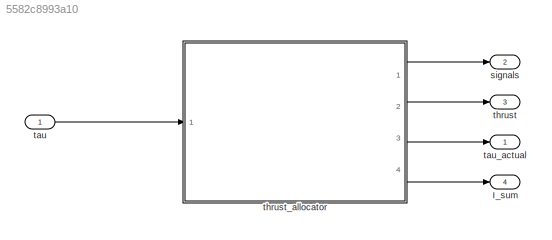
MODEL slx_5582c8993a10
KIND model
CONFIG AbsTol = auto
CONFIG EnableMultiTasking = off
CONFIG FixedStep = auto
CONFIG MaxStep = auto
CONFIG MinStep = auto
CONFIG RelTol = 1e-3
CONFIG SampleTimeConstraint = Unconstrained
CONFIG Solver = VariableStepAuto
CONFIG SolverName = VariableStepAuto
CONFIG StartTime = 0.0
CONFIG StopTime = 10.0
BLOCK [Outport] I_sum 
  IconDisplay = Port number
  Port = 4
  PortDimensions = 1
  VectorParamsAs1DForOutWhenUnconnected = off
BLOCK [Outport] signals 
  IconDisplay = Port number
  Port = 2
  PortDimensions = 6
  VectorParamsAs1DForOutWhenUnconnected = off
BLOCK [Inport] tau 
  IconDisplay = Port number
  PortDimensions = 6
  SampleTime = 1
BLOCK [Outport] tau_actual 
  IconDisplay = Port number
  PortDimensions = 6
  VectorParamsAs1DForOutWhenUnconnected = off
BLOCK [Outport] thrust
  IconDisplay = Port number
  Port = 3
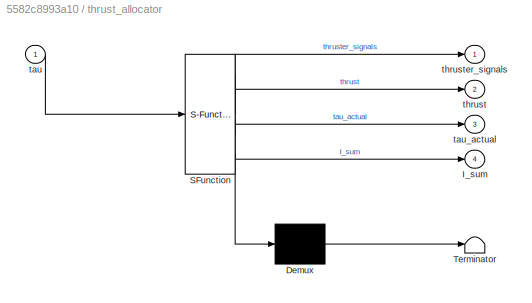
BLOCK [SubSystem] thrust_allocator
  ErrorFcn = Stateflow.Translate.translate
  PermitHierarchicalResolution = ExplicitOnly
  Ports = [1, 4]
  RequestExecContextInheritance = off
  SFBlockType = MATLAB Function
  TreatAsAtomicUnit = on
BLOCK [Demux] thrust_allocator/ Demux 
  Outputs = 1
  Ports = [1, 1]
BLOCK [S-Function] thrust_allocator/ SFunction 
  EnableBusSupport = on
  FunctionName = sf_sfun
  Parameters = params
  PortCounts = [1 5]
  Ports = [1, 5]
  SFcnIsStateOwnerBlock = off
  SFunctionDeploymentMode = off
  Tag = Stateflow S-Function 2
BLOCK [Terminator] thrust_allocator/ Terminator 
BLOCK [Outport] thrust_allocator/I_sum
  IconDisplay = Port number
  Port = 4
BLOCK [Inport] thrust_allocator/tau
  IconDisplay = Port number
BLOCK [Outport] thrust_allocator/tau_actual
  IconDisplay = Port number
  Port = 3
BLOCK [Outport] thrust_allocator/thrust
  IconDisplay = Port number
  Port = 2
BLOCK [Outport] thrust_allocator/thruster_signals
  IconDisplay = Port number
  VectorParamsAs1DForOutWhenUnconnected = off
LINE tau :1 -> thrust_allocator:1
LINE thrust_allocator:1 -> signals :1
LINE thrust_allocator:2 -> thrust:1
LINE thrust_allocator:3 -> tau_actual :1
LINE thrust_allocator:4 -> I_sum :1
CHART thrust_allocator states=1 transitions=1
  STATE_LABEL 'eML_blk_kernel()'
  STATE_LABEL 'SCRIPT:\nfunction [thruster_signals, thrust, tau_actual, I_sum] = thrust_allocator(tau, params)\n%#codegen\n\n% [thruster_signals, thrust, tau_actual, I_sum] = thrust_allocator(tau, params) returns the\n% actual thrust the thrusters can produce, and a vector of PWM signals to \n% send to the thruster array on board the UBC Subbots AUV given a desired \n% input thrust vector tau. \n\n% Load params into loca...<+3293ch>'
